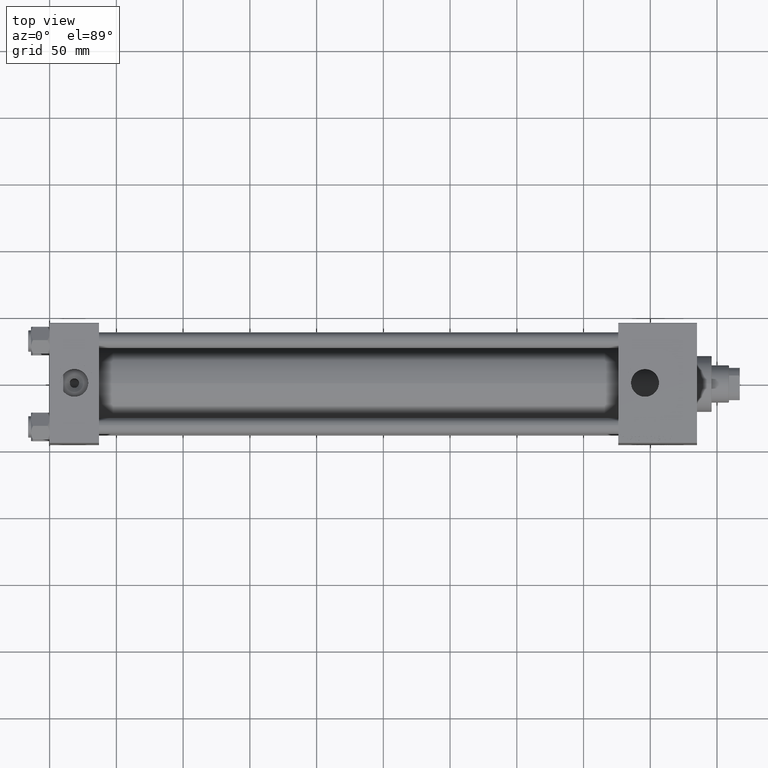
[diagram: clean part render]
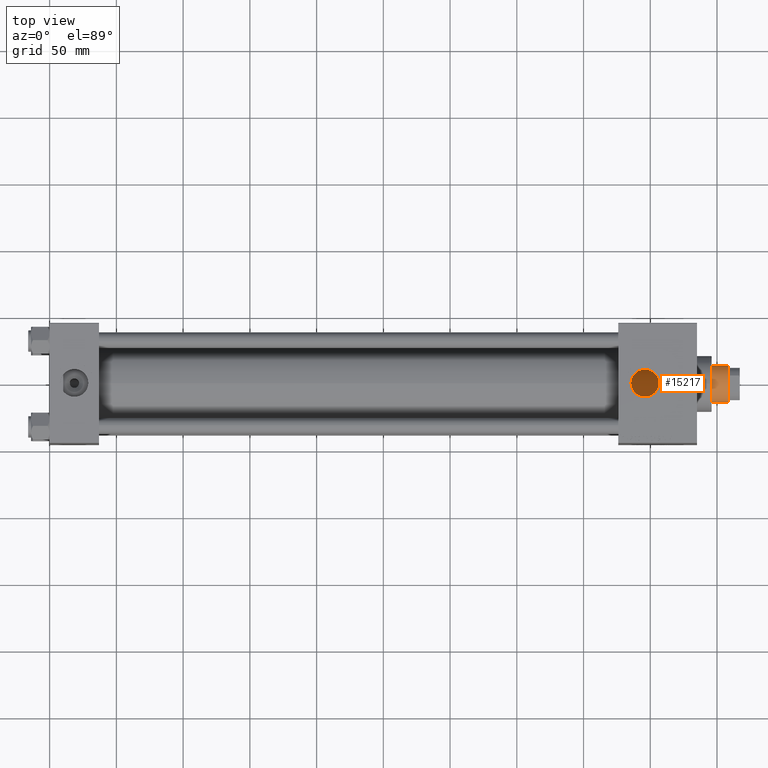
[diagram: same view with one face highlighted and labeled with its STEP entity id]
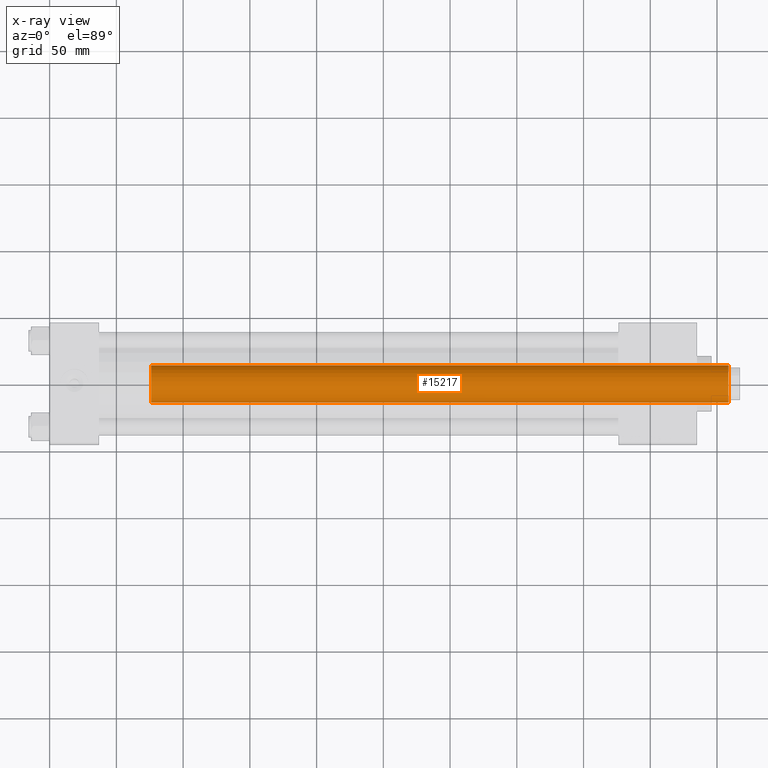
[diagram: x-ray of the same camera — body ghosted, the highlighted face saturated]
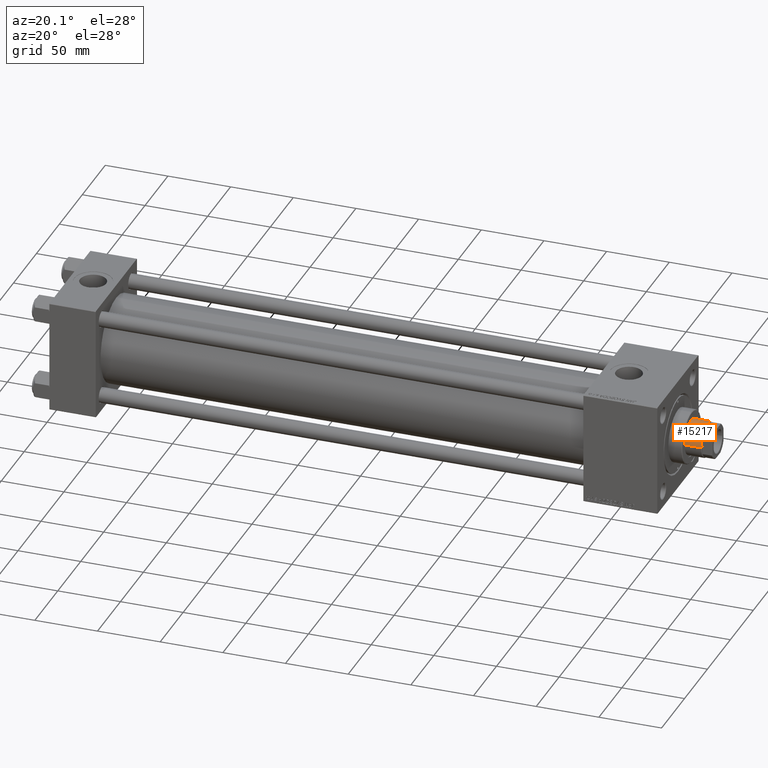
[diagram: same view with one face highlighted and labeled with its STEP entity id]
A machine part, top view. The second image highlights one B-rep face of the part: STEP entity #15217.
The next image is the same camera in x-ray: the body ghosted, the highlighted face saturated — about 0% of this face is hidden behind the body in this view.
A second angle (auxiliary view) of the same face is appended — the face is thin or edge-on in the first view.
In plain terms, the highlighted cylindrical surface (edge-blend (fillet) strip) has radius 14 mm, axis along (-1, 0, 0).
Its self-contained STEP definition (entity closure, byte-faithful):
#250 = CARTESIAN_POINT ( 'NONE',  ( -14.00000000000000178, 0.000000000000000000, 471.5000000000001705 ) ) ;
#332 = EDGE_LOOP ( 'NONE', ( #43115, #28828, #25142, #44672 ) ) ;
#457 = FACE_OUTER_BOUND ( 'NONE', #332, .T. ) ;
#2791 = CARTESIAN_POINT ( 'NONE',  ( 0.000000000000000000, 0.000000000000000000, 471.5000000000001705 ) ) ;
#3139 = EDGE_CURVE ( 'NONE', #34288, #38230, #34914, .T. ) ;
#4276 = LINE ( 'NONE', #35553, #28583 ) ;
#8499 = DIRECTION ( 'NONE',  ( -0.000000000000000000, -0.000000000000000000, -1.000000000000000000 ) ) ;
#11526 = EDGE_CURVE ( 'NONE', #38230, #14860, #4276, .T. ) ;
#13762 = EDGE_CURVE ( 'NONE', #34288, #25401, #46696, .T. ) ;
#14544 = CIRCLE ( 'NONE', #42999, 14.00000000000000178 ) ;
#14860 = VERTEX_POINT ( 'NONE', #41334 ) ;
#15217 = ADVANCED_FACE ( 'NONE', ( #457 ), #32502, .T. ) ;
#15454 = AXIS2_PLACEMENT_3D ( 'NONE', #2791, #33826, #29400 ) ;
#15732 = DIRECTION ( 'NONE',  ( -0.000000000000000000, -0.000000000000000000, -1.000000000000000000 ) ) ;
#16012 = CARTESIAN_POINT ( 'NONE',  ( 0.000000000000000000, 0.000000000000000000, 39.00000000000000000 ) ) ;
#20043 = CARTESIAN_POINT ( 'NONE',  ( 0.000000000000000000, 0.000000000000000000, 472.0000000000000000 ) ) ;
#22228 = AXIS2_PLACEMENT_3D ( 'NONE', #20043, #43722, #27683 ) ;
#23093 = CARTESIAN_POINT ( 'NONE',  ( 14.00000000000000178, 1.714505518806294441E-15, 39.00000000000000000 ) ) ;
#24404 = DIRECTION ( 'NONE',  ( 0.000000000000000000, 0.000000000000000000, 1.000000000000000000 ) ) ;
#24633 = VECTOR ( 'NONE', #8499, 1000.000000000000000 ) ;
#25142 = ORIENTED_EDGE ( 'NONE', *, *, #11526, .T. ) ;
#25401 = VERTEX_POINT ( 'NONE', #23093 ) ;
#27683 = DIRECTION ( 'NONE',  ( -1.000000000000000000, 0.000000000000000000, 0.000000000000000000 ) ) ;
#27828 = CARTESIAN_POINT ( 'NONE',  ( 14.00000000000000178, 1.714505518806294441E-15, 472.0000000000000000 ) ) ;
#28583 = VECTOR ( 'NONE', #15732, 1000.000000000000000 ) ;
#28828 = ORIENTED_EDGE ( 'NONE', *, *, #3139, .T. ) ;
#29400 = DIRECTION ( 'NONE',  ( 1.000000000000000000, 0.000000000000000000, 0.000000000000000000 ) ) ;
#32502 = CYLINDRICAL_SURFACE ( 'NONE', #22228, 14.00000000000000178 ) ;
#33826 = DIRECTION ( 'NONE',  ( 0.000000000000000000, 0.000000000000000000, -1.000000000000000000 ) ) ;
#34288 = VERTEX_POINT ( 'NONE', #44164 ) ;
#34914 = CIRCLE ( 'NONE', #15454, 14.00000000000000178 ) ;
#35553 = CARTESIAN_POINT ( 'NONE',  ( -14.00000000000000178, 0.000000000000000000, 472.0000000000000000 ) ) ;
#36851 = EDGE_CURVE ( 'NONE', #14860, #25401, #14544, .T. ) ;
#38230 = VERTEX_POINT ( 'NONE', #250 ) ;
#41334 = CARTESIAN_POINT ( 'NONE',  ( -14.00000000000000178, 0.000000000000000000, 39.00000000000000000 ) ) ;
#42999 = AXIS2_PLACEMENT_3D ( 'NONE', #16012, #24404, #47087 ) ;
#43115 = ORIENTED_EDGE ( 'NONE', *, *, #13762, .F. ) ;
#43722 = DIRECTION ( 'NONE',  ( -0.000000000000000000, -0.000000000000000000, -1.000000000000000000 ) ) ;
#44164 = CARTESIAN_POINT ( 'NONE',  ( 14.00000000000000178, 1.714505518806294441E-15, 471.5000000000001705 ) ) ;
#44672 = ORIENTED_EDGE ( 'NONE', *, *, #36851, .T. ) ;
#46696 = LINE ( 'NONE', #27828, #24633 ) ;
#47087 = DIRECTION ( 'NONE',  ( 1.000000000000000000, 0.000000000000000000, 0.000000000000000000 ) ) ;